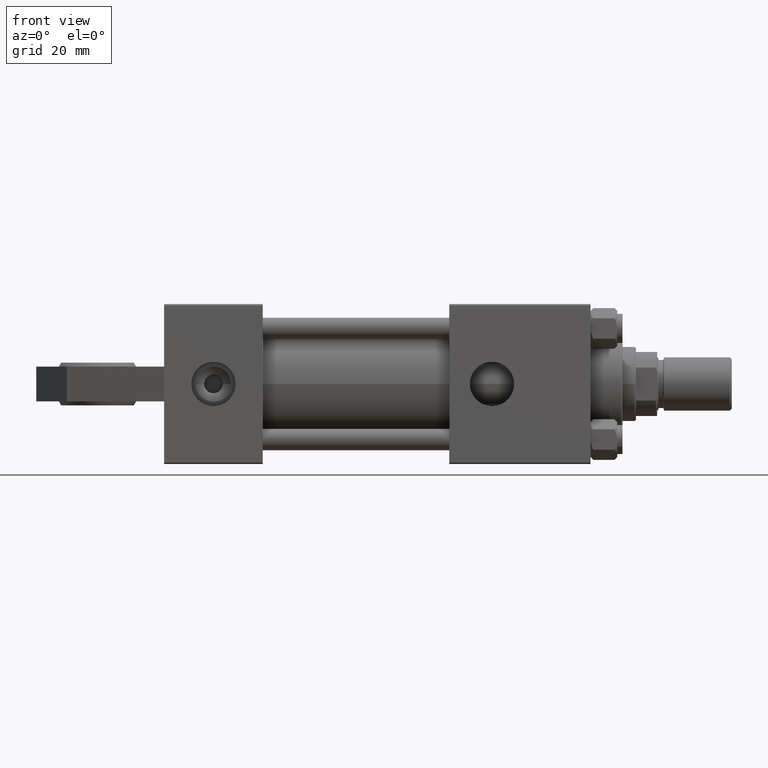
[diagram: clean part render]
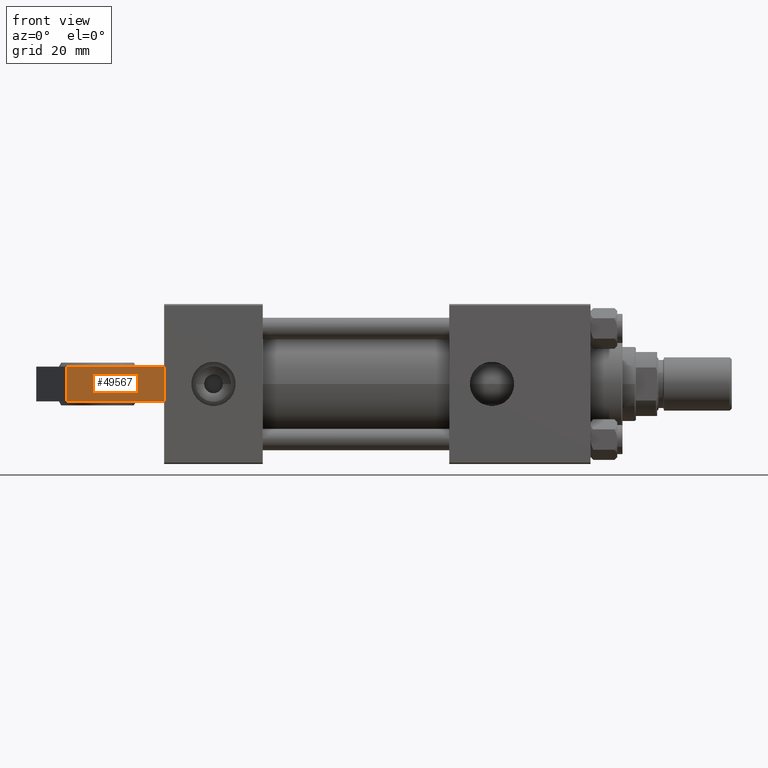
[diagram: same view with one face highlighted and labeled with its STEP entity id]
A machine part, front view. The second image highlights one B-rep face of the part: STEP entity #49567.
In plain terms, the highlighted planar face has unit normal (-0.2588, -0.9659, 0).
Its self-contained STEP definition (entity closure, byte-faithful):
#751 = DIRECTION ( 'NONE',  ( 0.9659258262890672020, 0.000000000000000000, 0.2588190451025247363 ) ) ;
#2712 = VECTOR ( 'NONE', #751, 1000.000000000000227 ) ;
#4564 = VERTEX_POINT ( 'NONE', #27647 ) ;
#5894 = EDGE_CURVE ( 'NONE', #46038, #14205, #50475, .T. ) ;
#6021 = VECTOR ( 'NONE', #30095, 1000.000000000000000 ) ;
#7036 = CARTESIAN_POINT ( 'NONE',  ( -36.50000000000000711, 6.500000000000000000, 20.21985447626385124 ) ) ;
#8131 = LINE ( 'NONE', #28644, #10852 ) ;
#8710 = CARTESIAN_POINT ( 'NONE',  ( -36.50000000000000711, -6.500000000000000000, 20.21985447626385124 ) ) ;
#10773 = VECTOR ( 'NONE', #22728, 1000.000000000000000 ) ;
#10852 = VECTOR ( 'NONE', #43555, 1000.000000000000227 ) ;
#11237 = EDGE_CURVE ( 'NONE', #14205, #4564, #8131, .T. ) ;
#14135 = DIRECTION ( 'NONE',  ( -0.2588190451025247918, 0.000000000000000000, 0.9659258262890672020 ) ) ;
#14205 = VERTEX_POINT ( 'NONE', #7036 ) ;
#15386 = EDGE_CURVE ( 'NONE', #31798, #4564, #37278, .T. ) ;
#20700 = CARTESIAN_POINT ( 'NONE',  ( -36.50000000000000711, -6.500000000000000000, 20.21985447626385124 ) ) ;
#21313 = ORIENTED_EDGE ( 'NONE', *, *, #11237, .F. ) ;
#22603 = ORIENTED_EDGE ( 'NONE', *, *, #49701, .T. ) ;
#22728 = DIRECTION ( 'NONE',  ( 0.000000000000000000, 1.000000000000000000, 0.000000000000000000 ) ) ;
#25946 = FACE_OUTER_BOUND ( 'NONE', #28501, .T. ) ;
#26209 = DIRECTION ( 'NONE',  ( 0.9659258262890672020, 0.000000000000000000, 0.2588190451025247918 ) ) ;
#27647 = CARTESIAN_POINT ( 'NONE',  ( 0.000000000000000000, 6.500000000000000000, 29.99999999999999289 ) ) ;
#28501 = EDGE_LOOP ( 'NONE', ( #21313, #33041, #22603, #28669 ) ) ;
#28644 = CARTESIAN_POINT ( 'NONE',  ( -36.50000000000000711, 6.500000000000000000, 20.21985447626385124 ) ) ;
#28669 = ORIENTED_EDGE ( 'NONE', *, *, #15386, .T. ) ;
#30095 = DIRECTION ( 'NONE',  ( 0.000000000000000000, 1.000000000000000000, 0.000000000000000000 ) ) ;
#31449 = CARTESIAN_POINT ( 'NONE',  ( -36.50000000000000711, -6.500000000000000000, 20.21985447626385124 ) ) ;
#31798 = VERTEX_POINT ( 'NONE', #33943 ) ;
#33041 = ORIENTED_EDGE ( 'NONE', *, *, #5894, .F. ) ;
#33943 = CARTESIAN_POINT ( 'NONE',  ( 0.000000000000000000, -6.500000000000000000, 29.99999999999999289 ) ) ;
#34667 = AXIS2_PLACEMENT_3D ( 'NONE', #41604, #14135, #26209 ) ;
#36677 = LINE ( 'NONE', #8710, #2712 ) ;
#37278 = LINE ( 'NONE', #44981, #6021 ) ;
#37509 = PLANE ( 'NONE',  #34667 ) ;
#41604 = CARTESIAN_POINT ( 'NONE',  ( -36.50000000000000711, -6.500000000000000000, 20.21985447626385124 ) ) ;
#43555 = DIRECTION ( 'NONE',  ( 0.9659258262890672020, 0.000000000000000000, 0.2588190451025247363 ) ) ;
#44981 = CARTESIAN_POINT ( 'NONE',  ( 0.000000000000000000, -6.500000000000000000, 29.99999999999999289 ) ) ;
#46038 = VERTEX_POINT ( 'NONE', #20700 ) ;
#49567 = ADVANCED_FACE ( 'NONE', ( #25946 ), #37509, .T. ) ;
#49701 = EDGE_CURVE ( 'NONE', #46038, #31798, #36677, .T. ) ;
#50475 = LINE ( 'NONE', #31449, #10773 ) ;